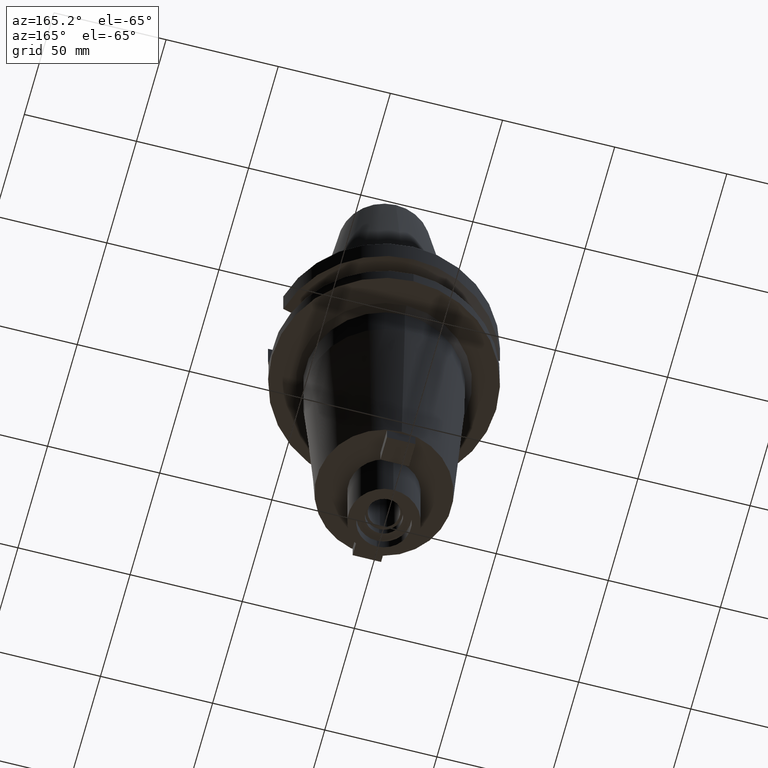
[diagram: clean part render]
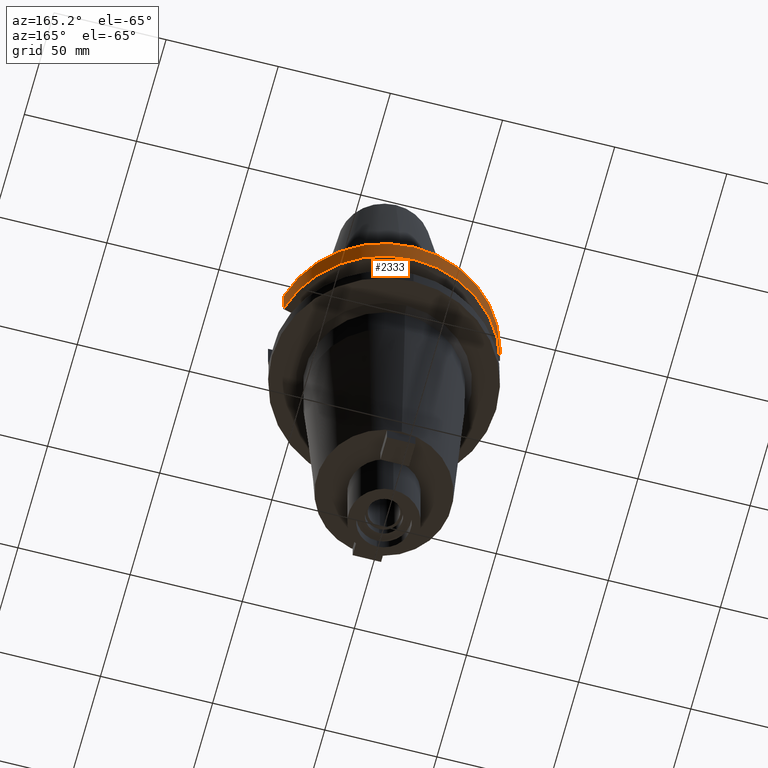
[diagram: same view with one face highlighted and labeled with its STEP entity id]
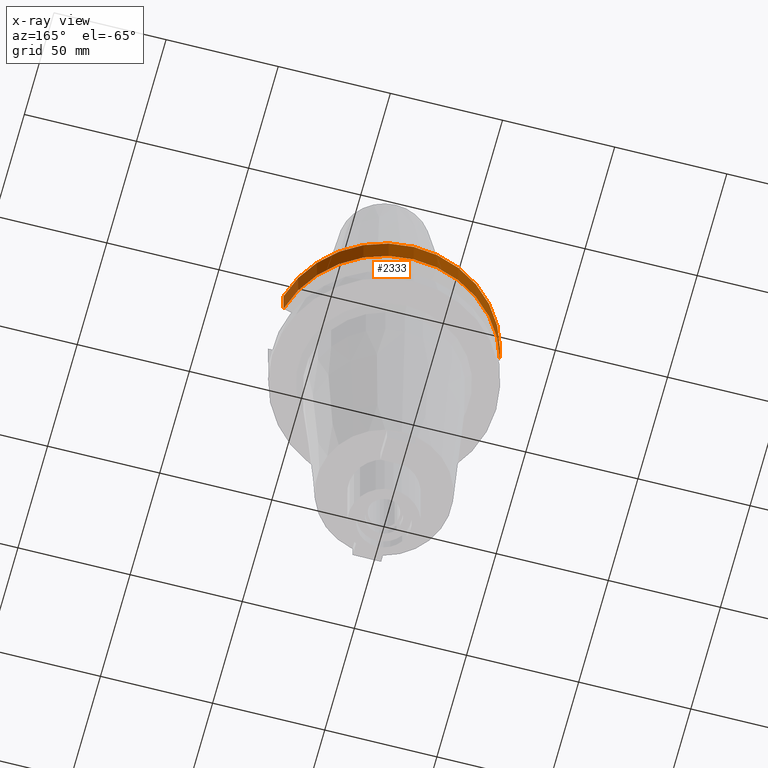
[diagram: x-ray of the same camera — body ghosted, the highlighted face saturated]
A machine part, auxiliary view. The second image highlights one B-rep face of the part: STEP entity #2333.
The next image is the same camera in x-ray: the body ghosted, the highlighted face saturated — about 0% of this face is hidden behind the body in this view.
In plain terms, the highlighted cylindrical surface (partial cylindrical patch) has radius 50 mm, axis along (0, 0, -1).
Its self-contained STEP definition (entity closure, byte-faithful):
#184=CARTESIAN_POINT('',(0.E0,2.643889974679E-14,-3.E0));
#185=DIRECTION('',(0.E0,0.E0,-1.E0));
#186=DIRECTION('',(-9.664114030784E-1,2.57E-1,0.E0));
#187=AXIS2_PLACEMENT_3D('',#184,#185,#186);
#192=CARTESIAN_POINT('',(0.E0,2.643889974679E-14,-3.E0));
#193=DIRECTION('',(0.E0,0.E0,-1.E0));
#194=DIRECTION('',(0.E0,1.E0,0.E0));
#195=AXIS2_PLACEMENT_3D('',#192,#193,#194);
#1046=CARTESIAN_POINT('',(4.832056912815E1,1.285000385726E1,-1.566265768273E1));
#1142=DIRECTION('',(8.103406434829E-8,3.047167049312E-7,-1.E0));
#1143=VECTOR('',#1142,1.266265767139E1);
#1144=CARTESIAN_POINT('',(-4.832057015392E1,1.285E1,-3.E0));
#1145=LINE('',#1144,#1143);
#1149=DIRECTION('',(8.100749521827E-8,-3.046167948963E-7,1.E0));
#1150=VECTOR('',#1149,1.266265768273E1);
#1151=CARTESIAN_POINT('',(4.832056912815E1,1.285000385726E1,-1.566265768273E1));
#1152=LINE('',#1151,#1150);
#1161=CARTESIAN_POINT('',(-4.832056912781E1,1.285000385852E1,
-1.566265767139E1));
#1182=CARTESIAN_POINT('',(0.E0,1.006319759054E-14,-1.566269223573E1));
#1183=DIRECTION('',(0.E0,0.E0,1.E0));
#1184=DIRECTION('',(9.664114030784E-1,2.57E-1,0.E0));
#1185=AXIS2_PLACEMENT_3D('',#1182,#1183,#1184);
#1190=CARTESIAN_POINT('',(0.E0,1.006319759054E-14,-1.566269223573E1));
#1191=DIRECTION('',(0.E0,0.E0,1.E0));
#1192=DIRECTION('',(0.E0,1.E0,0.E0));
#1193=AXIS2_PLACEMENT_3D('',#1190,#1191,#1192);
#1230=CARTESIAN_POINT('',(-4.832057015392E1,1.285E1,-3.E0));
#1231=VERTEX_POINT('',#1230);
#1232=CARTESIAN_POINT('',(-1.065814103640E-14,5.E1,-3.E0));
#1233=CARTESIAN_POINT('',(4.832057015392E1,1.285E1,-3.E0));
#1234=VERTEX_POINT('',#1232);
#1235=VERTEX_POINT('',#1233);
#1387=VERTEX_POINT('',#1161);
#1388=VERTEX_POINT('',#1046);
#1389=CARTESIAN_POINT('',(0.E0,5.E1,-1.566269223573E1));
#1390=VERTEX_POINT('',#1389);
#2317=CARTESIAN_POINT('',(0.E0,2.643889974679E-14,1.1589E2));
#2318=DIRECTION('',(0.E0,0.E0,-1.E0));
#2319=DIRECTION('',(0.E0,-1.E0,0.E0));
#2320=AXIS2_PLACEMENT_3D('',#2317,#2318,#2319);
#2321=CYLINDRICAL_SURFACE('',#2320,5.E1);
#2323=ORIENTED_EDGE('',*,*,#2322,.T.);
#2325=ORIENTED_EDGE('',*,*,#2324,.F.);
#2327=ORIENTED_EDGE('',*,*,#2326,.F.);
#2328=ORIENTED_EDGE('',*,*,#2250,.T.);
#2329=ORIENTED_EDGE('',*,*,#1558,.F.);
#2330=ORIENTED_EDGE('',*,*,#1556,.F.);
#2331=EDGE_LOOP('',(#2323,#2325,#2327,#2328,#2329,#2330));
#2332=FACE_OUTER_BOUND('',#2331,.F.);
#188=CIRCLE('',#187,5.E1);
#196=CIRCLE('',#195,5.E1);
#1186=CIRCLE('',#1185,5.E1);
#1194=CIRCLE('',#1193,5.E1);
#1556=EDGE_CURVE('',#1231,#1234,#188,.T.);
#1558=EDGE_CURVE('',#1234,#1235,#196,.T.);
#2250=EDGE_CURVE('',#1388,#1235,#1152,.T.);
#2322=EDGE_CURVE('',#1231,#1387,#1145,.T.);
#2324=EDGE_CURVE('',#1390,#1387,#1194,.T.);
#2326=EDGE_CURVE('',#1388,#1390,#1186,.T.);
#2333=ADVANCED_FACE('',(#2332),#2321,.T.);